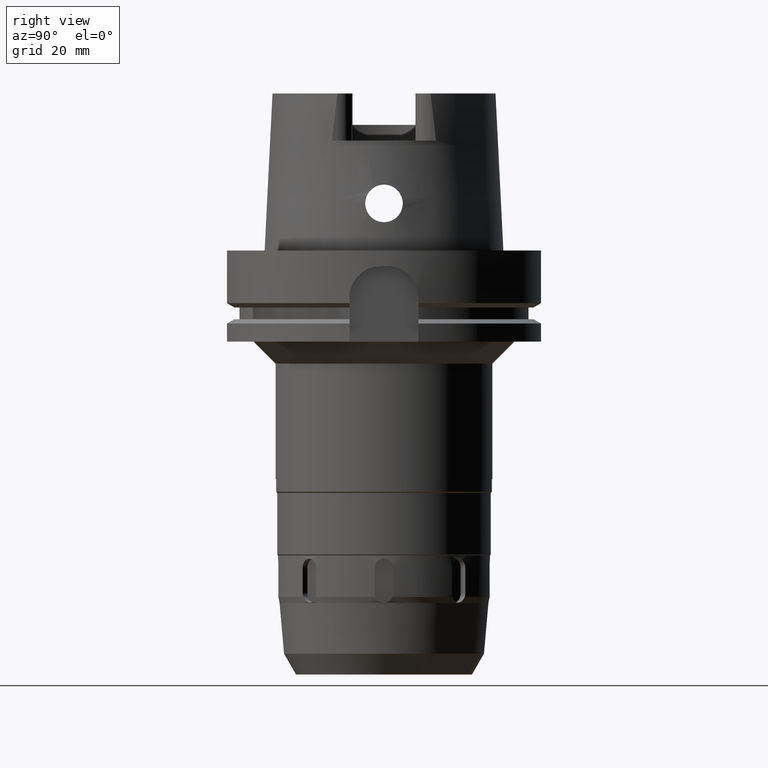
[diagram: clean part render]
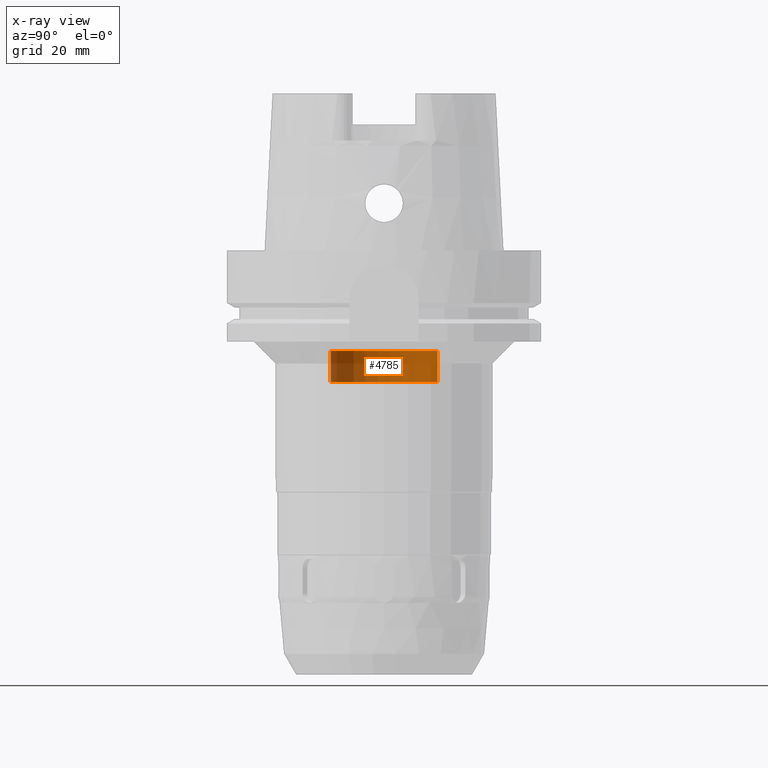
[diagram: x-ray — body ghosted, one internal face saturated and labeled with its STEP entity id]
A machine part, right view, then the same camera in x-ray: the body is ghosted and one INTERNAL B-rep face — a face not visible from any outside direction — is saturated and labeled: STEP entity #4785.
In plain terms, the highlighted cylindrical surface (partial cylindrical patch) has radius 17 mm, axis along (0, 0, 1).
Its self-contained STEP definition (entity closure, byte-faithful):
#953=CARTESIAN_POINT('',(0.E0,0.E0,-3.2E1));
#954=DIRECTION('',(0.E0,0.E0,1.E0));
#955=DIRECTION('',(0.E0,1.E0,0.E0));
#956=AXIS2_PLACEMENT_3D('',#953,#954,#955);
#977=DIRECTION('',(0.E0,0.E0,1.E0));
#978=VECTOR('',#977,1.E1);
#979=CARTESIAN_POINT('',(0.E0,1.7E1,-4.2E1));
#980=LINE('',#979,#978);
#984=DIRECTION('',(0.E0,0.E0,1.E0));
#985=VECTOR('',#984,1.E1);
#986=CARTESIAN_POINT('',(0.E0,-1.7E1,-4.2E1));
#987=LINE('',#986,#985);
#991=CARTESIAN_POINT('',(0.E0,0.E0,-4.2E1));
#992=DIRECTION('',(0.E0,0.E0,-1.E0));
#993=DIRECTION('',(0.E0,-1.E0,0.E0));
#994=AXIS2_PLACEMENT_3D('',#991,#992,#993);
#3709=CARTESIAN_POINT('',(0.E0,-1.7E1,-3.2E1));
#3710=CARTESIAN_POINT('',(0.E0,1.7E1,-3.2E1));
#3711=VERTEX_POINT('',#3709);
#3712=VERTEX_POINT('',#3710);
#3713=CARTESIAN_POINT('',(0.E0,1.7E1,-4.2E1));
#3714=VERTEX_POINT('',#3713);
#3715=CARTESIAN_POINT('',(0.E0,-1.7E1,-4.2E1));
#3716=VERTEX_POINT('',#3715);
#4773=CARTESIAN_POINT('',(0.E0,0.E0,-1.4425E2));
#4774=DIRECTION('',(0.E0,0.E0,1.E0));
#4775=DIRECTION('',(0.E0,1.E0,0.E0));
#4776=AXIS2_PLACEMENT_3D('',#4773,#4774,#4775);
#4777=CYLINDRICAL_SURFACE('',#4776,1.7E1);
#4778=ORIENTED_EDGE('',*,*,#4763,.F.);
#4780=ORIENTED_EDGE('',*,*,#4779,.F.);
#4781=ORIENTED_EDGE('',*,*,#4766,.T.);
#4782=ORIENTED_EDGE('',*,*,#4749,.F.);
#4783=EDGE_LOOP('',(#4778,#4780,#4781,#4782));
#4784=FACE_OUTER_BOUND('',#4783,.F.);
#957=CIRCLE('',#956,1.7E1);
#995=CIRCLE('',#994,1.7E1);
#4749=EDGE_CURVE('',#3712,#3711,#957,.T.);
#4763=EDGE_CURVE('',#3714,#3712,#980,.T.);
#4766=EDGE_CURVE('',#3716,#3711,#987,.T.);
#4779=EDGE_CURVE('',#3716,#3714,#995,.T.);
#4785=ADVANCED_FACE('',(#4784),#4777,.F.);